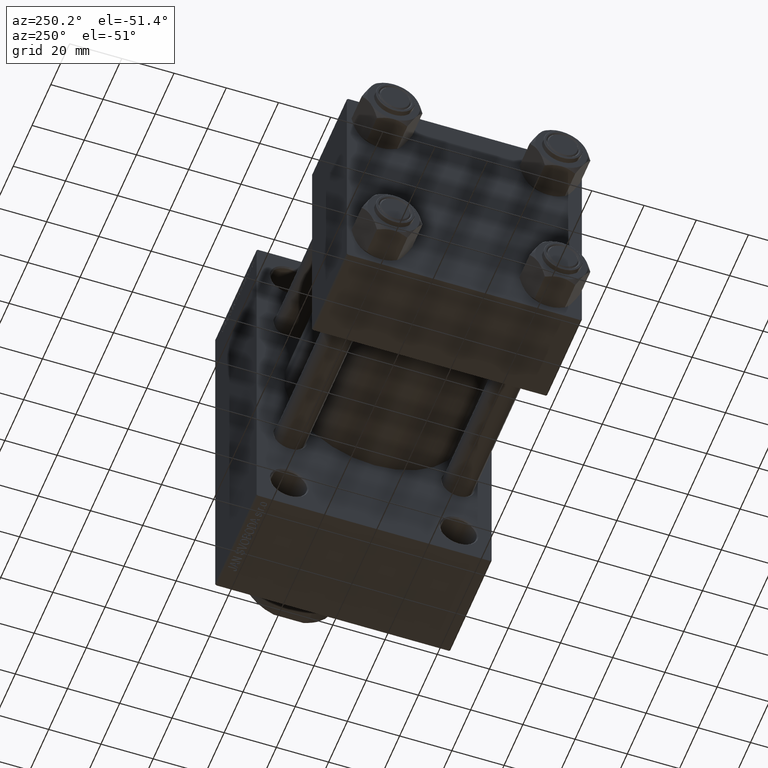
[diagram: clean part render]
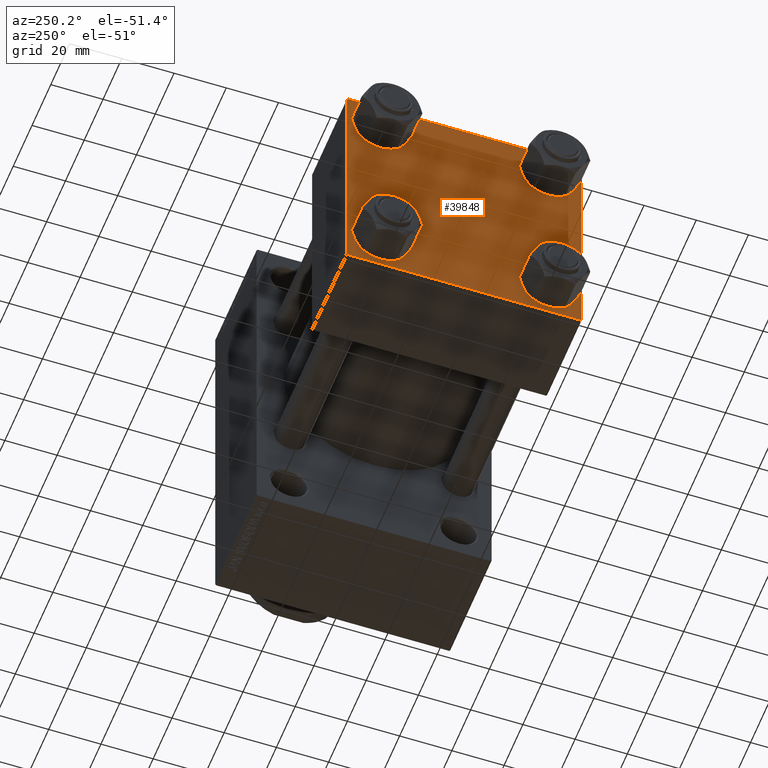
[diagram: same view with one face highlighted and labeled with its STEP entity id]
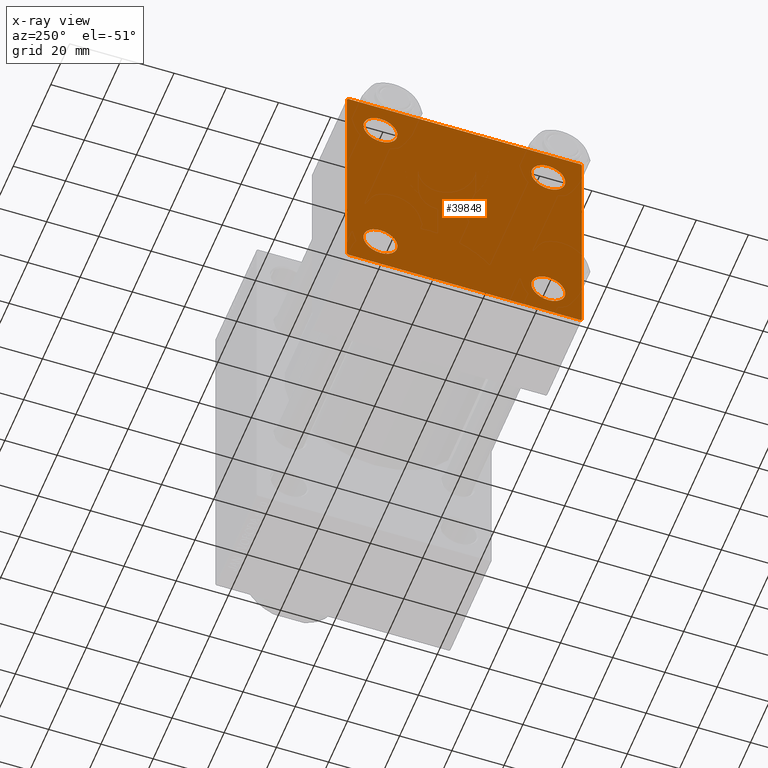
[diagram: x-ray of the same camera — body ghosted, the highlighted face saturated]
A machine part, auxiliary view. The second image highlights one B-rep face of the part: STEP entity #39848.
The next image is the same camera in x-ray: the body ghosted, the highlighted face saturated — about 0% of this face is hidden behind the body in this view.
In plain terms, the highlighted planar face has unit normal (-1, 0, 0).
Its self-contained STEP definition (entity closure, byte-faithful):
#469 = VERTEX_POINT ( 'NONE', #26346 ) ;
#763 = LINE ( 'NONE', #8397, #43589 ) ;
#1054 = DIRECTION ( 'NONE',  ( 0.000000000000000000, 0.000000000000000000, 1.000000000000000000 ) ) ;
#1605 = AXIS2_PLACEMENT_3D ( 'NONE', #42564, #13454, #10087 ) ;
#2169 = PLANE ( 'NONE',  #20089 ) ;
#2405 = CIRCLE ( 'NONE', #11518, 6.499999999999977796 ) ;
#2973 = ORIENTED_EDGE ( 'NONE', *, *, #46712, .T. ) ;
#2983 = ORIENTED_EDGE ( 'NONE', *, *, #12445, .T. ) ;
#3000 = VERTEX_POINT ( 'NONE', #6179 ) ;
#3246 = CARTESIAN_POINT ( 'NONE',  ( 0.000000000000000000, 44.74999999999998579, -44.74999999999998579 ) ) ;
#3374 = CARTESIAN_POINT ( 'NONE',  ( 0.000000000000000000, -32.14999999999997726, -25.65000000000003411 ) ) ;
#3459 = VECTOR ( 'NONE', #14457, 1000.000000000000114 ) ;
#3729 = CARTESIAN_POINT ( 'NONE',  ( 0.000000000000000000, -32.14999999999997726, 25.64999999999999147 ) ) ;
#3793 = VERTEX_POINT ( 'NONE', #25615 ) ;
#3836 = DIRECTION ( 'NONE',  ( 1.000000000000000000, -0.000000000000000000, 0.000000000000000000 ) ) ;
#4070 = CARTESIAN_POINT ( 'NONE',  ( 0.000000000000000000, 32.14999999999999147, 38.64999999999999147 ) ) ;
#4489 = VERTEX_POINT ( 'NONE', #37367 ) ;
#4508 = LINE ( 'NONE', #29354, #13051 ) ;
#5428 = VECTOR ( 'NONE', #24510, 1000.000000000000114 ) ;
#5515 = FACE_BOUND ( 'NONE', #19677, .T. ) ;
#6010 = DIRECTION ( 'NONE',  ( 1.000000000000000000, -0.000000000000000000, 0.000000000000000000 ) ) ;
#6084 = VERTEX_POINT ( 'NONE', #3729 ) ;
#6179 = CARTESIAN_POINT ( 'NONE',  ( 0.000000000000000000, -32.14999999999997726, -38.64999999999999147 ) ) ;
#7188 = EDGE_CURVE ( 'NONE', #469, #39192, #13083, .T. ) ;
#7540 = EDGE_CURVE ( 'NONE', #3793, #33334, #38760, .T. ) ;
#7601 = CIRCLE ( 'NONE', #43451, 6.500000000000019540 ) ;
#8397 = CARTESIAN_POINT ( 'NONE',  ( 0.000000000000000000, 44.99999999999998579, 45.00000000000001421 ) ) ;
#9024 = CARTESIAN_POINT ( 'NONE',  ( 0.000000000000000000, 44.99999999999998579, 44.50000000000001421 ) ) ;
#9092 = FACE_BOUND ( 'NONE', #20430, .T. ) ;
#9356 = DIRECTION ( 'NONE',  ( 0.000000000000000000, 0.000000000000000000, 1.000000000000000000 ) ) ;
#9464 = EDGE_CURVE ( 'NONE', #10785, #6084, #7601, .T. ) ;
#9494 = DIRECTION ( 'NONE',  ( 0.000000000000000000, -0.7071067811865474617, 0.7071067811865474617 ) ) ;
#9502 = ORIENTED_EDGE ( 'NONE', *, *, #9464, .T. ) ;
#9515 = ORIENTED_EDGE ( 'NONE', *, *, #15405, .T. ) ;
#10087 = DIRECTION ( 'NONE',  ( 0.000000000000000000, 0.000000000000000000, 1.000000000000000000 ) ) ;
#10785 = VERTEX_POINT ( 'NONE', #28667 ) ;
#10877 = AXIS2_PLACEMENT_3D ( 'NONE', #43152, #35978, #24994 ) ;
#11477 = AXIS2_PLACEMENT_3D ( 'NONE', #37573, #23709, #1054 ) ;
#11518 = AXIS2_PLACEMENT_3D ( 'NONE', #44184, #30562, #37733 ) ;
#12353 = EDGE_LOOP ( 'NONE', ( #36735, #25638, #2973, #27915, #35784, #40024, #25195, #32781 ) ) ;
#12445 = EDGE_CURVE ( 'NONE', #31933, #39252, #31989, .T. ) ;
#12986 = CARTESIAN_POINT ( 'NONE',  ( 0.000000000000000000, 32.14999999999999147, -32.15000000000000568 ) ) ;
#13051 = VECTOR ( 'NONE', #26469, 1000.000000000000000 ) ;
#13083 = LINE ( 'NONE', #27638, #41858 ) ;
#13148 = DIRECTION ( 'NONE',  ( -1.000000000000000000, 0.000000000000000000, -0.000000000000000000 ) ) ;
#13454 = DIRECTION ( 'NONE',  ( 1.000000000000000000, -0.000000000000000000, 0.000000000000000000 ) ) ;
#14009 = LINE ( 'NONE', #39066, #5428 ) ;
#14053 = CIRCLE ( 'NONE', #40726, 6.499999999999977796 ) ;
#14406 = EDGE_CURVE ( 'NONE', #6084, #10785, #42735, .T. ) ;
#14457 = DIRECTION ( 'NONE',  ( -0.000000000000000000, -0.7071067811865474617, -0.7071067811865474617 ) ) ;
#14828 = VECTOR ( 'NONE', #41734, 1000.000000000000000 ) ;
#15405 = EDGE_CURVE ( 'NONE', #32027, #4489, #22179, .T. ) ;
#15832 = EDGE_CURVE ( 'NONE', #18153, #33334, #4508, .T. ) ;
#15899 = CARTESIAN_POINT ( 'NONE',  ( 0.000000000000000000, -45.00000000000000000, -44.49999999999995737 ) ) ;
#16521 = EDGE_CURVE ( 'NONE', #23310, #38208, #763, .T. ) ;
#16658 = LINE ( 'NONE', #30745, #14828 ) ;
#17564 = LINE ( 'NONE', #3246, #3459 ) ;
#18153 = VERTEX_POINT ( 'NONE', #35482 ) ;
#18257 = AXIS2_PLACEMENT_3D ( 'NONE', #38246, #6010, #9356 ) ;
#18391 = CARTESIAN_POINT ( 'NONE',  ( 0.000000000000000000, -32.14999999999997726, 32.15000000000001279 ) ) ;
#19514 = ORIENTED_EDGE ( 'NONE', *, *, #14406, .T. ) ;
#19677 = EDGE_LOOP ( 'NONE', ( #2983, #24301 ) ) ;
#19837 = FACE_BOUND ( 'NONE', #46640, .T. ) ;
#20089 = AXIS2_PLACEMENT_3D ( 'NONE', #42736, #13148, #27940 ) ;
#20248 = CARTESIAN_POINT ( 'NONE',  ( 0.000000000000000000, 44.99999999999998579, -44.49999999999995737 ) ) ;
#20430 = EDGE_LOOP ( 'NONE', ( #36507, #9515 ) ) ;
#21053 = DIRECTION ( 'NONE',  ( 0.000000000000000000, 0.000000000000000000, 1.000000000000000000 ) ) ;
#21666 = CIRCLE ( 'NONE', #46077, 6.499999999999977796 ) ;
#22179 = CIRCLE ( 'NONE', #1605, 6.499999999999977796 ) ;
#22832 = VECTOR ( 'NONE', #37827, 1000.000000000000114 ) ;
#23286 = EDGE_CURVE ( 'NONE', #3793, #39192, #16658, .T. ) ;
#23310 = VERTEX_POINT ( 'NONE', #9024 ) ;
#23709 = DIRECTION ( 'NONE',  ( 1.000000000000000000, -0.000000000000000000, 0.000000000000000000 ) ) ;
#24208 = CARTESIAN_POINT ( 'NONE',  ( 0.000000000000000000, -44.49999999999995737, 45.00000000000000000 ) ) ;
#24301 = ORIENTED_EDGE ( 'NONE', *, *, #38942, .T. ) ;
#24510 = DIRECTION ( 'NONE',  ( 0.000000000000000000, 0.7071067811865474617, -0.7071067811865474617 ) ) ;
#24591 = FACE_BOUND ( 'NONE', #39015, .T. ) ;
#24994 = DIRECTION ( 'NONE',  ( 0.000000000000000000, 0.000000000000000000, 1.000000000000000000 ) ) ;
#25195 = ORIENTED_EDGE ( 'NONE', *, *, #15832, .F. ) ;
#25219 = VERTEX_POINT ( 'NONE', #3374 ) ;
#25615 = CARTESIAN_POINT ( 'NONE',  ( 0.000000000000000000, -45.00000000000000711, 44.49999999999997158 ) ) ;
#25638 = ORIENTED_EDGE ( 'NONE', *, *, #44506, .T. ) ;
#26024 = DIRECTION ( 'NONE',  ( 0.000000000000000000, 0.000000000000000000, 1.000000000000000000 ) ) ;
#26346 = CARTESIAN_POINT ( 'NONE',  ( 0.000000000000000000, -44.49999999999995737, -45.00000000000000000 ) ) ;
#26445 = EDGE_CURVE ( 'NONE', #3000, #25219, #21666, .T. ) ;
#26469 = DIRECTION ( 'NONE',  ( 0.000000000000000000, -1.000000000000000000, -1.541976423090495387E-16 ) ) ;
#27638 = CARTESIAN_POINT ( 'NONE',  ( 0.000000000000000000, -44.74999999999998579, -44.74999999999998579 ) ) ;
#27915 = ORIENTED_EDGE ( 'NONE', *, *, #7188, .T. ) ;
#27940 = DIRECTION ( 'NONE',  ( -0.000000000000000000, 0.000000000000000000, 1.000000000000000000 ) ) ;
#27978 = CARTESIAN_POINT ( 'NONE',  ( 0.000000000000000000, -32.14999999999997726, -32.15000000000001279 ) ) ;
#28667 = CARTESIAN_POINT ( 'NONE',  ( 0.000000000000000000, -32.14999999999997726, 38.65000000000003411 ) ) ;
#29051 = LINE ( 'NONE', #35981, #37702 ) ;
#29354 = CARTESIAN_POINT ( 'NONE',  ( 0.000000000000000000, 44.99999999999998579, 45.00000000000001421 ) ) ;
#30256 = ORIENTED_EDGE ( 'NONE', *, *, #34904, .T. ) ;
#30562 = DIRECTION ( 'NONE',  ( 1.000000000000000000, -0.000000000000000000, 0.000000000000000000 ) ) ;
#30745 = CARTESIAN_POINT ( 'NONE',  ( 0.000000000000000000, -45.00000000000000711, 45.00000000000000000 ) ) ;
#30932 = CARTESIAN_POINT ( 'NONE',  ( 0.000000000000000000, 32.14999999999999147, 25.65000000000002700 ) ) ;
#31030 = CARTESIAN_POINT ( 'NONE',  ( 0.000000000000000000, 32.14999999999999147, -38.64999999999998437 ) ) ;
#31280 = FACE_OUTER_BOUND ( 'NONE', #12353, .T. ) ;
#31361 = DIRECTION ( 'NONE',  ( 1.000000000000000000, -0.000000000000000000, 0.000000000000000000 ) ) ;
#31793 = DIRECTION ( 'NONE',  ( 1.000000000000000000, -0.000000000000000000, 0.000000000000000000 ) ) ;
#31933 = VERTEX_POINT ( 'NONE', #4070 ) ;
#31989 = CIRCLE ( 'NONE', #18257, 6.499999999999977796 ) ;
#32027 = VERTEX_POINT ( 'NONE', #31030 ) ;
#32781 = ORIENTED_EDGE ( 'NONE', *, *, #35714, .T. ) ;
#33078 = ORIENTED_EDGE ( 'NONE', *, *, #26445, .T. ) ;
#33334 = VERTEX_POINT ( 'NONE', #24208 ) ;
#34173 = DIRECTION ( 'NONE',  ( 0.000000000000000000, 0.000000000000000000, -1.000000000000000000 ) ) ;
#34904 = EDGE_CURVE ( 'NONE', #25219, #3000, #2405, .T. ) ;
#34949 = DIRECTION ( 'NONE',  ( 0.000000000000000000, 0.000000000000000000, 1.000000000000000000 ) ) ;
#35482 = CARTESIAN_POINT ( 'NONE',  ( 0.000000000000000000, 44.49999999999998579, 45.00000000000001421 ) ) ;
#35714 = EDGE_CURVE ( 'NONE', #18153, #23310, #14009, .T. ) ;
#35784 = ORIENTED_EDGE ( 'NONE', *, *, #23286, .F. ) ;
#35978 = DIRECTION ( 'NONE',  ( 1.000000000000000000, -0.000000000000000000, 0.000000000000000000 ) ) ;
#35981 = CARTESIAN_POINT ( 'NONE',  ( 0.000000000000000000, 44.99999999999998579, -44.99999999999998579 ) ) ;
#36507 = ORIENTED_EDGE ( 'NONE', *, *, #42722, .T. ) ;
#36735 = ORIENTED_EDGE ( 'NONE', *, *, #16521, .T. ) ;
#37207 = VERTEX_POINT ( 'NONE', #45676 ) ;
#37367 = CARTESIAN_POINT ( 'NONE',  ( 0.000000000000000000, 32.14999999999999147, -25.65000000000002700 ) ) ;
#37573 = CARTESIAN_POINT ( 'NONE',  ( 0.000000000000000000, -32.14999999999997726, 32.15000000000001279 ) ) ;
#37702 = VECTOR ( 'NONE', #43618, 1000.000000000000000 ) ;
#37733 = DIRECTION ( 'NONE',  ( 0.000000000000000000, 0.000000000000000000, 1.000000000000000000 ) ) ;
#37827 = DIRECTION ( 'NONE',  ( -0.000000000000000000, 0.7071067811865425767, 0.7071067811865524577 ) ) ;
#38208 = VERTEX_POINT ( 'NONE', #20248 ) ;
#38246 = CARTESIAN_POINT ( 'NONE',  ( 0.000000000000000000, 32.14999999999999147, 32.15000000000000568 ) ) ;
#38760 = LINE ( 'NONE', #41409, #22832 ) ;
#38942 = EDGE_CURVE ( 'NONE', #39252, #31933, #43666, .T. ) ;
#39015 = EDGE_LOOP ( 'NONE', ( #9502, #19514 ) ) ;
#39066 = CARTESIAN_POINT ( 'NONE',  ( 0.000000000000000000, 44.74999999999999289, 44.74999999999999289 ) ) ;
#39192 = VERTEX_POINT ( 'NONE', #15899 ) ;
#39252 = VERTEX_POINT ( 'NONE', #30932 ) ;
#39848 = ADVANCED_FACE ( 'NONE', ( #24591, #19837, #9092, #5515, #31280 ), #2169, .T. ) ;
#40024 = ORIENTED_EDGE ( 'NONE', *, *, #7540, .T. ) ;
#40726 = AXIS2_PLACEMENT_3D ( 'NONE', #12986, #31361, #34949 ) ;
#41409 = CARTESIAN_POINT ( 'NONE',  ( -0.000000000000000000, -44.75000000000029843, 44.74999999999967315 ) ) ;
#41734 = DIRECTION ( 'NONE',  ( 0.000000000000000000, 7.709882115452476934E-17, -1.000000000000000000 ) ) ;
#41858 = VECTOR ( 'NONE', #9494, 1000.000000000000114 ) ;
#42564 = CARTESIAN_POINT ( 'NONE',  ( 0.000000000000000000, 32.14999999999999147, -32.15000000000000568 ) ) ;
#42722 = EDGE_CURVE ( 'NONE', #4489, #32027, #14053, .T. ) ;
#42735 = CIRCLE ( 'NONE', #11477, 6.500000000000019540 ) ;
#42736 = CARTESIAN_POINT ( 'NONE',  ( 0.000000000000000000, 0.000000000000000000, 0.000000000000000000 ) ) ;
#43152 = CARTESIAN_POINT ( 'NONE',  ( 0.000000000000000000, 32.14999999999999147, 32.15000000000000568 ) ) ;
#43451 = AXIS2_PLACEMENT_3D ( 'NONE', #18391, #3836, #26024 ) ;
#43589 = VECTOR ( 'NONE', #34173, 1000.000000000000000 ) ;
#43618 = DIRECTION ( 'NONE',  ( 0.000000000000000000, -1.000000000000000000, -1.541976423090495633E-16 ) ) ;
#43666 = CIRCLE ( 'NONE', #10877, 6.499999999999977796 ) ;
#44184 = CARTESIAN_POINT ( 'NONE',  ( 0.000000000000000000, -32.14999999999997726, -32.15000000000001279 ) ) ;
#44506 = EDGE_CURVE ( 'NONE', #38208, #37207, #17564, .T. ) ;
#45676 = CARTESIAN_POINT ( 'NONE',  ( 0.000000000000000000, 44.49999999999998579, -44.99999999999998579 ) ) ;
#46077 = AXIS2_PLACEMENT_3D ( 'NONE', #27978, #31793, #21053 ) ;
#46640 = EDGE_LOOP ( 'NONE', ( #30256, #33078 ) ) ;
#46712 = EDGE_CURVE ( 'NONE', #37207, #469, #29051, .T. ) ;